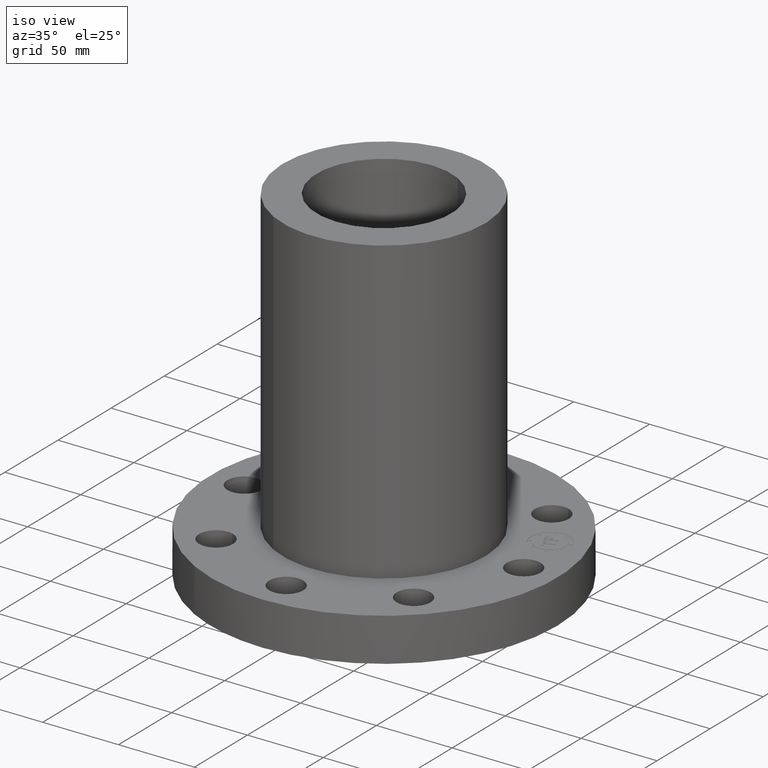
[diagram: clean part render]
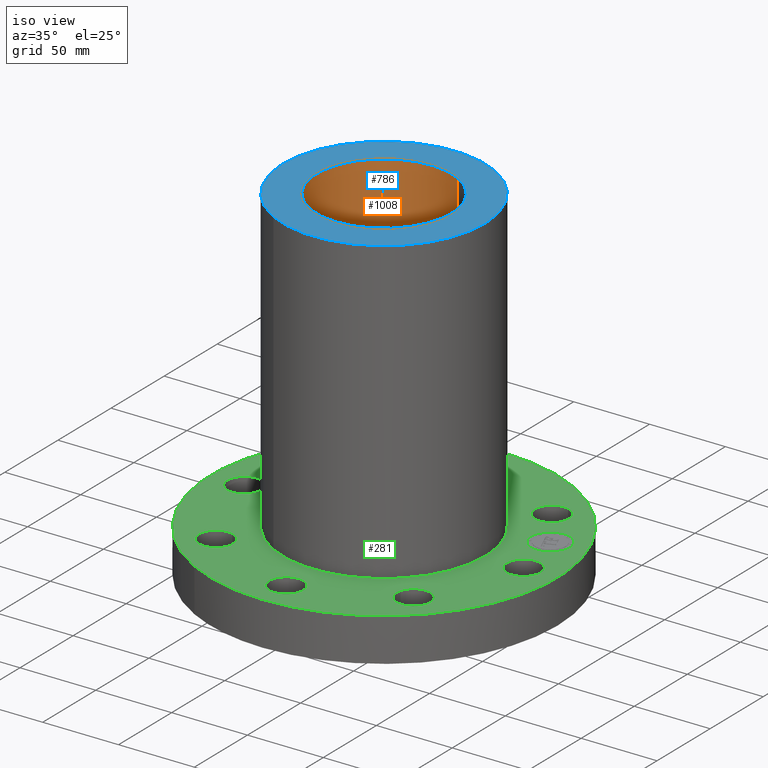
[diagram: same view with three faces highlighted in distinct colors, each labeled with its STEP entity id]
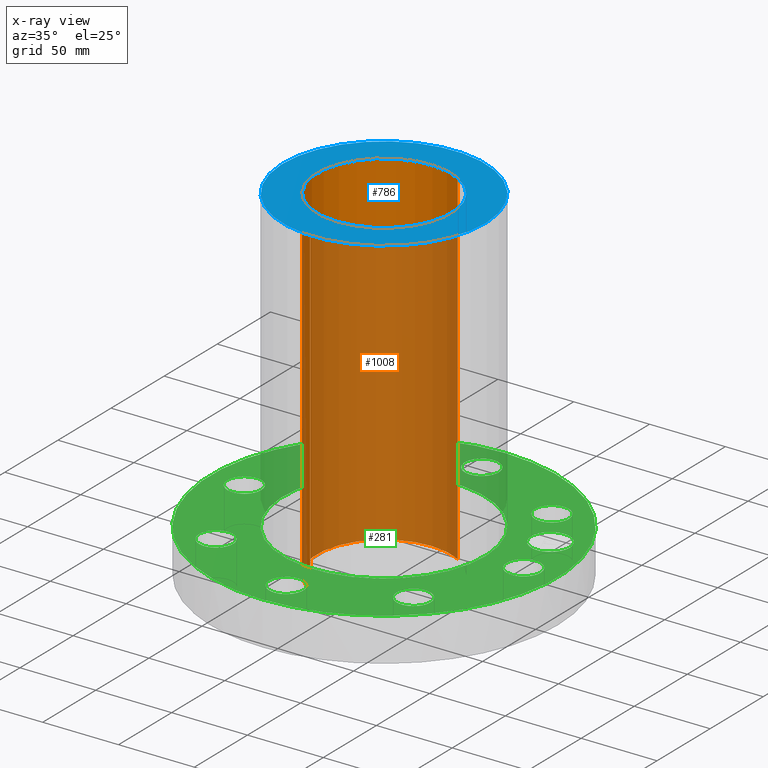
[diagram: x-ray of the same camera — body ghosted, the three highlighted faces saturated]
A machine part, iso view with three faces highlighted in distinct colors.
The next image is the same camera in x-ray (body ghosted, the three faces saturated) — at least one of them is partly hidden behind the body in this view.
Their STEP definitions:

[orange] entity #1008 — the highlighted cylindrical surface (partial cylindrical patch) has radius 44.45 mm, axis along (0, 0, -1).
#770=AXIS2_PLACEMENT_3D('Circle Axis2P3D',#768,#769,$) ;
#969=AXIS2_PLACEMENT_3D('Cylinder Axis2P3D',#966,#967,#968) ;
#999=AXIS2_PLACEMENT_3D('Circle Axis2P3D',#997,#998,$) ;
#768=CARTESIAN_POINT('Axis2P3D Location',(0.,0.,8.93750000004)) ;
#772=CARTESIAN_POINT('Vertex',(-0.838994692561,-1.53576948331,8.93750000004)) ;
#774=CARTESIAN_POINT('Vertex',(0.838994692561,1.53576948331,8.93750000004)) ;
#966=CARTESIAN_POINT('Axis2P3D Location',(0.,0.,4.43750000002)) ;
#975=CARTESIAN_POINT('Vertex',(-0.838994692561,-1.53576948331,0.)) ;
#977=CARTESIAN_POINT('Vertex',(0.838994692561,1.53576948331,0.)) ;
#980=CARTESIAN_POINT('Line Origine',(-0.838994692561,-1.53576948331,4.46875000002)) ;
#985=CARTESIAN_POINT('Line Origine',(0.838994692561,1.53576948331,4.46875000002)) ;
#997=CARTESIAN_POINT('Axis2P3D Location',(0.,0.,0.)) ;
#769=DIRECTION('Axis2P3D Direction',(0.,0.,-0.0393700787402)) ;
#967=DIRECTION('Axis2P3D Direction',(0.,0.,-0.0393700787402)) ;
#968=DIRECTION('Axis2P3D XDirection',(-0.0188750212049,-0.0345504945626,0.)) ;
#981=DIRECTION('Vector Direction',(0.,0.,-0.0393700787402)) ;
#986=DIRECTION('Vector Direction',(0.,0.,-0.0393700787402)) ;
#998=DIRECTION('Axis2P3D Direction',(0.,0.,-0.0393700787402)) ;
#982=VECTOR('Line Direction',#981,0.0393700787402) ;
#987=VECTOR('Line Direction',#986,0.0393700787402) ;
#1003=ORIENTED_EDGE('',*,*,#1001,.F.) ;
#1004=ORIENTED_EDGE('',*,*,#989,.F.) ;
#1005=ORIENTED_EDGE('',*,*,#776,.F.) ;
#1006=ORIENTED_EDGE('',*,*,#984,.T.) ;
#1008=ADVANCED_FACE('PartBody',(#1007),#970,.F.) ;
#771=CIRCLE('generated circle',#770,1.75000000001) ;
#1000=CIRCLE('generated circle',#999,1.75000000001) ;
#970=CYLINDRICAL_SURFACE('generated cylinder',#969,1.75000000001) ;
#776=EDGE_CURVE('',#773,#775,#771,.T.) ;
#984=EDGE_CURVE('',#773,#976,#983,.T.) ;
#989=EDGE_CURVE('',#775,#978,#988,.T.) ;
#1001=EDGE_CURVE('',#978,#976,#1000,.F.) ;
#1002=EDGE_LOOP('',(#1003,#1004,#1005,#1006)) ;
#1007=FACE_OUTER_BOUND('',#1002,.T.) ;
#983=LINE('Line',#980,#982) ;
#988=LINE('Line',#985,#987) ;
#773=VERTEX_POINT('',#772) ;
#775=VERTEX_POINT('',#774) ;
#976=VERTEX_POINT('',#975) ;
#978=VERTEX_POINT('',#977) ;

[blue] entity #786 — the highlighted planar face has unit normal (0, 0, -1).
#371=AXIS2_PLACEMENT_3D('Circle Axis2P3D',#369,#370,$) ;
#390=AXIS2_PLACEMENT_3D('Circle Axis2P3D',#388,#389,$) ;
#762=AXIS2_PLACEMENT_3D('Plane Axis2P3D',#759,#760,#761) ;
#770=AXIS2_PLACEMENT_3D('Circle Axis2P3D',#768,#769,$) ;
#779=AXIS2_PLACEMENT_3D('Circle Axis2P3D',#777,#778,$) ;
#366=CARTESIAN_POINT('Vertex',(1.25849203884,2.30365422497,8.93750000004)) ;
#369=CARTESIAN_POINT('Axis2P3D Location',(0.,0.,8.93750000004)) ;
#373=CARTESIAN_POINT('Vertex',(-1.25849203884,-2.30365422497,8.93750000004)) ;
#388=CARTESIAN_POINT('Axis2P3D Location',(0.,0.,8.93750000004)) ;
#759=CARTESIAN_POINT('Axis2P3D Location',(0.,2.62500000001,8.93750000004)) ;
#768=CARTESIAN_POINT('Axis2P3D Location',(0.,0.,8.93750000004)) ;
#772=CARTESIAN_POINT('Vertex',(-0.838994692561,-1.53576948331,8.93750000004)) ;
#774=CARTESIAN_POINT('Vertex',(0.838994692561,1.53576948331,8.93750000004)) ;
#777=CARTESIAN_POINT('Axis2P3D Location',(0.,0.,8.93750000004)) ;
#370=DIRECTION('Axis2P3D Direction',(0.,0.,-0.0393700787402)) ;
#389=DIRECTION('Axis2P3D Direction',(0.,0.,-0.0393700787402)) ;
#760=DIRECTION('Axis2P3D Direction',(0.,0.,-0.0393700787402)) ;
#761=DIRECTION('Axis2P3D XDirection',(0.0393700787402,0.,0.)) ;
#769=DIRECTION('Axis2P3D Direction',(0.,0.,-0.0393700787402)) ;
#778=DIRECTION('Axis2P3D Direction',(0.,0.,-0.0393700787402)) ;
#765=ORIENTED_EDGE('',*,*,#375,.F.) ;
#766=ORIENTED_EDGE('',*,*,#392,.F.) ;
#783=ORIENTED_EDGE('',*,*,#776,.T.) ;
#784=ORIENTED_EDGE('',*,*,#781,.T.) ;
#785=FACE_BOUND('',#782,.T.) ;
#786=ADVANCED_FACE('PartBody',(#767,#785),#763,.F.) ;
#372=CIRCLE('generated circle',#371,2.62500000001) ;
#391=CIRCLE('generated circle',#390,2.62500000001) ;
#771=CIRCLE('generated circle',#770,1.75000000001) ;
#780=CIRCLE('generated circle',#779,1.75000000001) ;
#375=EDGE_CURVE('',#367,#374,#372,.T.) ;
#392=EDGE_CURVE('',#374,#367,#391,.T.) ;
#776=EDGE_CURVE('',#773,#775,#771,.T.) ;
#781=EDGE_CURVE('',#775,#773,#780,.T.) ;
#764=EDGE_LOOP('',(#765,#766)) ;
#782=EDGE_LOOP('',(#783,#784)) ;
#767=FACE_OUTER_BOUND('',#764,.T.) ;
#763=PLANE('',#762) ;
#367=VERTEX_POINT('',#366) ;
#374=VERTEX_POINT('',#373) ;
#773=VERTEX_POINT('',#772) ;
#775=VERTEX_POINT('',#774) ;

[green] entity #281 — the highlighted planar face has unit normal (0, 0, -1).
#51=AXIS2_PLACEMENT_3D('Circle Axis2P3D',#49,#50,$) ;
#77=AXIS2_PLACEMENT_3D('Circle Axis2P3D',#75,#76,$) ;
#95=AXIS2_PLACEMENT_3D('Plane Axis2P3D',#92,#93,#94) ;
#99=AXIS2_PLACEMENT_3D('Circle Axis2P3D',#97,#98,$) ;
#108=AXIS2_PLACEMENT_3D('Circle Axis2P3D',#106,#107,$) ;
#121=AXIS2_PLACEMENT_3D('Circle Axis2P3D',#119,#120,$) ;
#130=AXIS2_PLACEMENT_3D('Circle Axis2P3D',#128,#129,$) ;
#139=AXIS2_PLACEMENT_3D('Circle Axis2P3D',#137,#138,$) ;
#148=AXIS2_PLACEMENT_3D('Circle Axis2P3D',#146,#147,$) ;
#157=AXIS2_PLACEMENT_3D('Circle Axis2P3D',#155,#156,$) ;
#166=AXIS2_PLACEMENT_3D('Circle Axis2P3D',#164,#165,$) ;
#175=AXIS2_PLACEMENT_3D('Circle Axis2P3D',#173,#174,$) ;
#184=AXIS2_PLACEMENT_3D('Circle Axis2P3D',#182,#183,$) ;
#193=AXIS2_PLACEMENT_3D('Circle Axis2P3D',#191,#192,$) ;
#202=AXIS2_PLACEMENT_3D('Circle Axis2P3D',#200,#201,$) ;
#211=AXIS2_PLACEMENT_3D('Circle Axis2P3D',#209,#210,$) ;
#220=AXIS2_PLACEMENT_3D('Circle Axis2P3D',#218,#219,$) ;
#229=AXIS2_PLACEMENT_3D('Circle Axis2P3D',#227,#228,$) ;
#238=AXIS2_PLACEMENT_3D('Circle Axis2P3D',#236,#237,$) ;
#247=AXIS2_PLACEMENT_3D('Circle Axis2P3D',#245,#246,$) ;
#256=AXIS2_PLACEMENT_3D('Circle Axis2P3D',#254,#255,$) ;
#265=AXIS2_PLACEMENT_3D('Circle Axis2P3D',#263,#264,$) ;
#274=AXIS2_PLACEMENT_3D('Circle Axis2P3D',#272,#273,$) ;
#44=CARTESIAN_POINT('Vertex',(3.23886367278,-0.210947236987,1.1275)) ;
#49=CARTESIAN_POINT('Axis2P3D Location',(3.62500000001,0.,1.1275)) ;
#53=CARTESIAN_POINT('Vertex',(4.01113632725,0.210947236987,1.1275)) ;
#75=CARTESIAN_POINT('Axis2P3D Location',(3.62500000001,0.,1.1275)) ;
#92=CARTESIAN_POINT('Axis2P3D Location',(0.,4.50000000002,1.1275)) ;
#97=CARTESIAN_POINT('Axis2P3D Location',(0.,0.,1.1275)) ;
#101=CARTESIAN_POINT('Vertex',(2.15741492373,3.94912152852,1.1275)) ;
#103=CARTESIAN_POINT('Vertex',(-2.15741492373,-3.94912152852,1.1275)) ;
#106=CARTESIAN_POINT('Axis2P3D Location',(0.,0.,1.1275)) ;
#119=CARTESIAN_POINT('Axis2P3D Location',(0.,0.,1.1275)) ;
#123=CARTESIAN_POINT('Vertex',(-1.25849203884,-2.30365422497,1.1275)) ;
#125=CARTESIAN_POINT('Vertex',(1.25849203884,2.30365422497,1.1275)) ;
#128=CARTESIAN_POINT('Axis2P3D Location',(0.,0.,1.1275)) ;
#137=CARTESIAN_POINT('Axis2P3D Location',(2.56326208181,-2.56326208181,1.1275)) ;
#141=CARTESIAN_POINT('Vertex',(2.14106024462,-2.43938468811,1.1275)) ;
#143=CARTESIAN_POINT('Vertex',(2.98546391901,-2.68713947551,1.1275)) ;
#146=CARTESIAN_POINT('Axis2P3D Location',(2.56326208181,-2.56326208181,1.1275)) ;
#155=CARTESIAN_POINT('Axis2P3D Location',(-1.39870617276E-016,-3.62500000001,1.1275)) ;
#159=CARTESIAN_POINT('Vertex',(-0.210947236987,-3.23886367278,1.1275)) ;
#161=CARTESIAN_POINT('Vertex',(0.210947236987,-4.01113632725,1.1275)) ;
#164=CARTESIAN_POINT('Axis2P3D Location',(-2.44773580232E-016,-3.62500000001,1.1275)) ;
#173=CARTESIAN_POINT('Axis2P3D Location',(-2.56326208181,-2.56326208181,1.1275)) ;
#177=CARTESIAN_POINT('Vertex',(-2.43938468811,-2.14106024462,1.1275)) ;
#179=CARTESIAN_POINT('Vertex',(-2.68713947551,-2.98546391901,1.1275)) ;
#182=CARTESIAN_POINT('Axis2P3D Location',(-2.56326208181,-2.56326208181,1.1275)) ;
#191=CARTESIAN_POINT('Axis2P3D Location',(-3.62500000001,-5.59482469102E-016,1.1275)) ;
#195=CARTESIAN_POINT('Vertex',(-3.23886367278,0.210947236987,1.1275)) ;
#197=CARTESIAN_POINT('Vertex',(-4.01113632725,-0.210947236987,1.1275)) ;
#200=CARTESIAN_POINT('Axis2P3D Location',(-3.62500000001,0.,1.1275)) ;
#209=CARTESIAN_POINT('Axis2P3D Location',(-2.56326208181,2.56326208181,1.1275)) ;
#213=CARTESIAN_POINT('Vertex',(-2.14106024462,2.43938468811,1.1275)) ;
#215=CARTESIAN_POINT('Vertex',(-2.98546391901,2.68713947551,1.1275)) ;
#218=CARTESIAN_POINT('Axis2P3D Location',(-2.56326208181,2.56326208181,1.1275)) ;
#227=CARTESIAN_POINT('Axis2P3D Location',(-4.54579506146E-016,3.62500000001,1.1275)) ;
#231=CARTESIAN_POINT('Vertex',(0.210947236987,3.23886367278,1.1275)) ;
#233=CARTESIAN_POINT('Vertex',(-0.210947236987,4.01113632725,1.1275)) ;
#236=CARTESIAN_POINT('Axis2P3D Location',(-1.04902962957E-015,3.62500000001,1.1275)) ;
#245=CARTESIAN_POINT('Axis2P3D Location',(2.56326208181,2.56326208181,1.1275)) ;
#249=CARTESIAN_POINT('Vertex',(2.43938468811,2.14106024462,1.1275)) ;
#251=CARTESIAN_POINT('Vertex',(2.68713947551,2.98546391901,1.1275)) ;
#254=CARTESIAN_POINT('Axis2P3D Location',(2.56326208181,2.56326208181,1.1275)) ;
#263=CARTESIAN_POINT('Axis2P3D Location',(3.34906330537,1.38722744233,1.1275)) ;
#267=CARTESIAN_POINT('Vertex',(3.54040501964,0.925287680691,1.1275)) ;
#269=CARTESIAN_POINT('Vertex',(3.1577215911,1.84916720397,1.1275)) ;
#272=CARTESIAN_POINT('Axis2P3D Location',(3.34906330537,1.38722744233,1.1275)) ;
#50=DIRECTION('Axis2P3D Direction',(0.,-0.,0.0393700787402)) ;
#76=DIRECTION('Axis2P3D Direction',(0.,-0.,0.0393700787402)) ;
#93=DIRECTION('Axis2P3D Direction',(0.,0.,-0.0393700787402)) ;
#94=DIRECTION('Axis2P3D XDirection',(0.0393700787402,0.,0.)) ;
#98=DIRECTION('Axis2P3D Direction',(0.,0.,-0.0393700787402)) ;
#107=DIRECTION('Axis2P3D Direction',(0.,0.,-0.0393700787402)) ;
#120=DIRECTION('Axis2P3D Direction',(0.,0.,-0.0393700787402)) ;
#129=DIRECTION('Axis2P3D Direction',(0.,0.,-0.0393700787402)) ;
#138=DIRECTION('Axis2P3D Direction',(0.,0.,-0.0393700787402)) ;
#147=DIRECTION('Axis2P3D Direction',(0.,0.,-0.0393700787402)) ;
#156=DIRECTION('Axis2P3D Direction',(0.,0.,-0.0393700787402)) ;
#165=DIRECTION('Axis2P3D Direction',(0.,0.,-0.0393700787402)) ;
#174=DIRECTION('Axis2P3D Direction',(0.,0.,-0.0393700787402)) ;
#183=DIRECTION('Axis2P3D Direction',(0.,0.,-0.0393700787402)) ;
#192=DIRECTION('Axis2P3D Direction',(0.,0.,-0.0393700787402)) ;
#201=DIRECTION('Axis2P3D Direction',(0.,0.,-0.0393700787402)) ;
#210=DIRECTION('Axis2P3D Direction',(0.,0.,-0.0393700787402)) ;
#219=DIRECTION('Axis2P3D Direction',(0.,0.,-0.0393700787402)) ;
#228=DIRECTION('Axis2P3D Direction',(0.,0.,-0.0393700787402)) ;
#237=DIRECTION('Axis2P3D Direction',(0.,0.,-0.0393700787402)) ;
#246=DIRECTION('Axis2P3D Direction',(0.,0.,-0.0393700787402)) ;
#255=DIRECTION('Axis2P3D Direction',(0.,0.,-0.0393700787402)) ;
#264=DIRECTION('Axis2P3D Direction',(0.,0.,-0.0393700787402)) ;
#273=DIRECTION('Axis2P3D Direction',(0.,0.,-0.0393700787402)) ;
#112=ORIENTED_EDGE('',*,*,#105,.F.) ;
#113=ORIENTED_EDGE('',*,*,#110,.F.) ;
#116=ORIENTED_EDGE('',*,*,#55,.T.) ;
#117=ORIENTED_EDGE('',*,*,#79,.T.) ;
#134=ORIENTED_EDGE('',*,*,#127,.T.) ;
#135=ORIENTED_EDGE('',*,*,#132,.T.) ;
#152=ORIENTED_EDGE('',*,*,#145,.T.) ;
#153=ORIENTED_EDGE('',*,*,#150,.T.) ;
#170=ORIENTED_EDGE('',*,*,#163,.T.) ;
#171=ORIENTED_EDGE('',*,*,#168,.T.) ;
#188=ORIENTED_EDGE('',*,*,#181,.T.) ;
#189=ORIENTED_EDGE('',*,*,#186,.T.) ;
#206=ORIENTED_EDGE('',*,*,#199,.T.) ;
#207=ORIENTED_EDGE('',*,*,#204,.T.) ;
#224=ORIENTED_EDGE('',*,*,#217,.T.) ;
#225=ORIENTED_EDGE('',*,*,#222,.T.) ;
#242=ORIENTED_EDGE('',*,*,#235,.T.) ;
#243=ORIENTED_EDGE('',*,*,#240,.T.) ;
#260=ORIENTED_EDGE('',*,*,#253,.T.) ;
#261=ORIENTED_EDGE('',*,*,#258,.T.) ;
#278=ORIENTED_EDGE('',*,*,#271,.F.) ;
#279=ORIENTED_EDGE('',*,*,#276,.F.) ;
#118=FACE_BOUND('',#115,.T.) ;
#136=FACE_BOUND('',#133,.T.) ;
#154=FACE_BOUND('',#151,.T.) ;
#172=FACE_BOUND('',#169,.T.) ;
#190=FACE_BOUND('',#187,.T.) ;
#208=FACE_BOUND('',#205,.T.) ;
#226=FACE_BOUND('',#223,.T.) ;
#244=FACE_BOUND('',#241,.T.) ;
#262=FACE_BOUND('',#259,.T.) ;
#280=FACE_BOUND('',#277,.T.) ;
#281=ADVANCED_FACE('PartBody',(#114,#118,#136,#154,#172,#190,#208,#226,#244,#262,#280),#96,.F.) ;
#52=CIRCLE('generated circle',#51,0.440000000002) ;
#78=CIRCLE('generated circle',#77,0.440000000002) ;
#100=CIRCLE('generated circle',#99,4.50000000002) ;
#109=CIRCLE('generated circle',#108,4.50000000002) ;
#122=CIRCLE('generated circle',#121,2.62500000001) ;
#131=CIRCLE('generated circle',#130,2.62500000001) ;
#140=CIRCLE('generated circle',#139,0.440000000002) ;
#149=CIRCLE('generated circle',#148,0.440000000002) ;
#158=CIRCLE('generated circle',#157,0.440000000002) ;
#167=CIRCLE('generated circle',#166,0.440000000002) ;
#176=CIRCLE('generated circle',#175,0.440000000002) ;
#185=CIRCLE('generated circle',#184,0.440000000002) ;
#194=CIRCLE('generated circle',#193,0.440000000002) ;
#203=CIRCLE('generated circle',#202,0.440000000002) ;
#212=CIRCLE('generated circle',#211,0.440000000002) ;
#221=CIRCLE('generated circle',#220,0.440000000002) ;
#230=CIRCLE('generated circle',#229,0.440000000002) ;
#239=CIRCLE('generated circle',#238,0.440000000002) ;
#248=CIRCLE('generated circle',#247,0.440000000002) ;
#257=CIRCLE('generated circle',#256,0.440000000002) ;
#266=CIRCLE('generated circle',#265,0.499999995002) ;
#275=CIRCLE('generated circle',#274,0.499999995002) ;
#55=EDGE_CURVE('',#54,#45,#52,.F.) ;
#79=EDGE_CURVE('',#45,#54,#78,.F.) ;
#105=EDGE_CURVE('',#102,#104,#100,.T.) ;
#110=EDGE_CURVE('',#104,#102,#109,.T.) ;
#127=EDGE_CURVE('',#124,#126,#122,.T.) ;
#132=EDGE_CURVE('',#126,#124,#131,.T.) ;
#145=EDGE_CURVE('',#142,#144,#140,.T.) ;
#150=EDGE_CURVE('',#144,#142,#149,.T.) ;
#163=EDGE_CURVE('',#160,#162,#158,.T.) ;
#168=EDGE_CURVE('',#162,#160,#167,.T.) ;
#181=EDGE_CURVE('',#178,#180,#176,.T.) ;
#186=EDGE_CURVE('',#180,#178,#185,.T.) ;
#199=EDGE_CURVE('',#196,#198,#194,.T.) ;
#204=EDGE_CURVE('',#198,#196,#203,.T.) ;
#217=EDGE_CURVE('',#214,#216,#212,.T.) ;
#222=EDGE_CURVE('',#216,#214,#221,.T.) ;
#235=EDGE_CURVE('',#232,#234,#230,.T.) ;
#240=EDGE_CURVE('',#234,#232,#239,.T.) ;
#253=EDGE_CURVE('',#250,#252,#248,.T.) ;
#258=EDGE_CURVE('',#252,#250,#257,.T.) ;
#271=EDGE_CURVE('',#268,#270,#266,.F.) ;
#276=EDGE_CURVE('',#270,#268,#275,.F.) ;
#111=EDGE_LOOP('',(#112,#113)) ;
#115=EDGE_LOOP('',(#116,#117)) ;
#133=EDGE_LOOP('',(#134,#135)) ;
#151=EDGE_LOOP('',(#152,#153)) ;
#169=EDGE_LOOP('',(#170,#171)) ;
#187=EDGE_LOOP('',(#188,#189)) ;
#205=EDGE_LOOP('',(#206,#207)) ;
#223=EDGE_LOOP('',(#224,#225)) ;
#241=EDGE_LOOP('',(#242,#243)) ;
#259=EDGE_LOOP('',(#260,#261)) ;
#277=EDGE_LOOP('',(#278,#279)) ;
#114=FACE_OUTER_BOUND('',#111,.T.) ;
#96=PLANE('',#95) ;
#45=VERTEX_POINT('',#44) ;
#54=VERTEX_POINT('',#53) ;
#102=VERTEX_POINT('',#101) ;
#104=VERTEX_POINT('',#103) ;
#124=VERTEX_POINT('',#123) ;
#126=VERTEX_POINT('',#125) ;
#142=VERTEX_POINT('',#141) ;
#144=VERTEX_POINT('',#143) ;
#160=VERTEX_POINT('',#159) ;
#162=VERTEX_POINT('',#161) ;
#178=VERTEX_POINT('',#177) ;
#180=VERTEX_POINT('',#179) ;
#196=VERTEX_POINT('',#195) ;
#198=VERTEX_POINT('',#197) ;
#214=VERTEX_POINT('',#213) ;
#216=VERTEX_POINT('',#215) ;
#232=VERTEX_POINT('',#231) ;
#234=VERTEX_POINT('',#233) ;
#250=VERTEX_POINT('',#249) ;
#252=VERTEX_POINT('',#251) ;
#268=VERTEX_POINT('',#267) ;
#270=VERTEX_POINT('',#269) ;